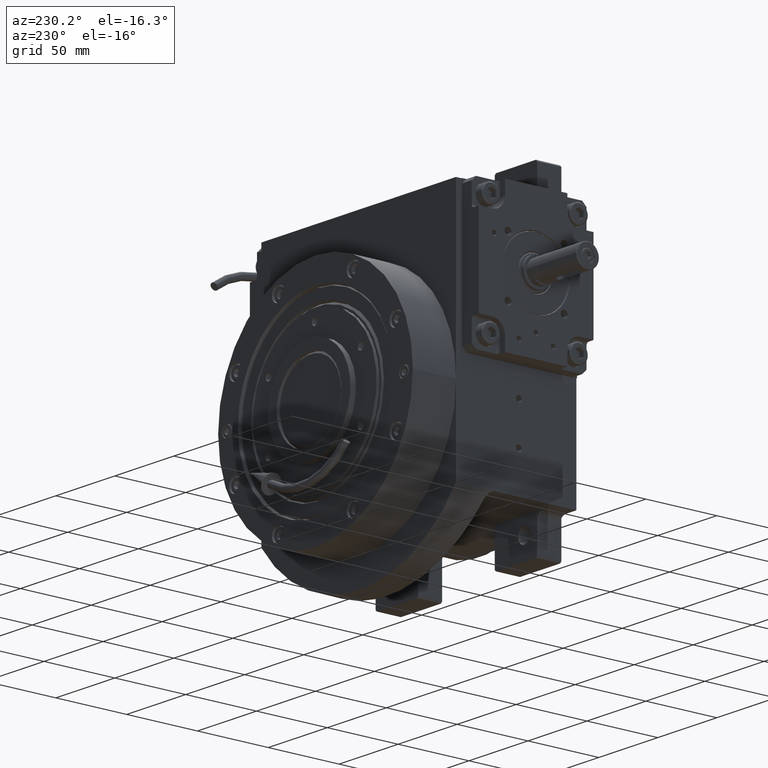
[diagram: clean part render]
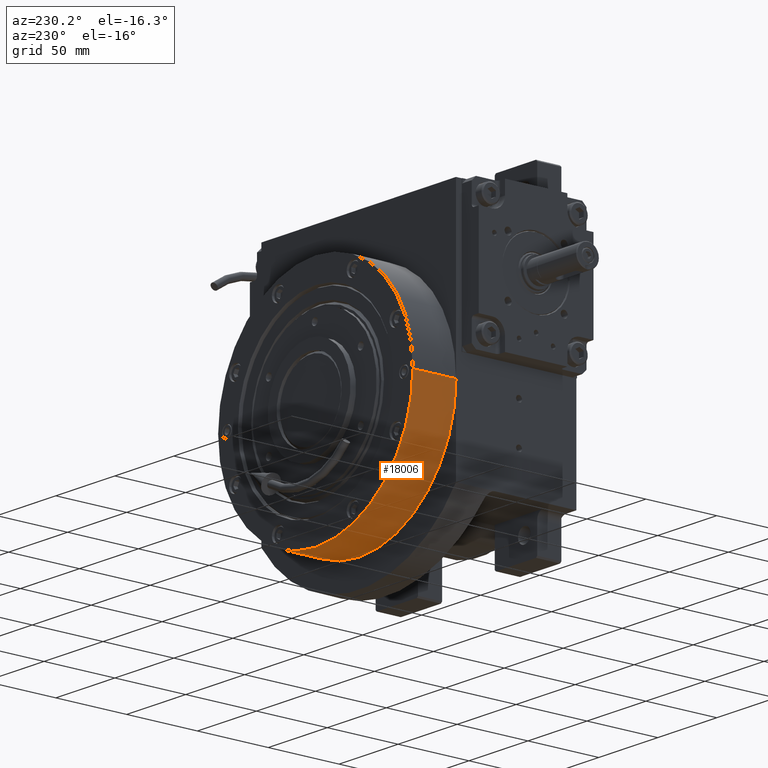
[diagram: same view with one face highlighted and labeled with its STEP entity id]
A machine part, auxiliary view. The second image highlights one B-rep face of the part: STEP entity #18006.
In plain terms, the highlighted cylindrical surface (partial cylindrical patch) has radius 82.5 mm, axis along (0, 1, 0).
Its self-contained STEP definition (entity closure, byte-faithful):
#1248 = CARTESIAN_POINT ( 'NONE',  ( 0.000000000000000000, 0.000000000000000000, 30.49999999999999289 ) ) ;
#1890 = DIRECTION ( 'NONE',  ( 1.000000000000000000, 0.000000000000000000, 0.000000000000000000 ) ) ;
#4792 = CARTESIAN_POINT ( 'NONE',  ( -82.50000000000001421, 1.010322486831990379E-14, 0.000000000000000000 ) ) ;
#6547 = FACE_OUTER_BOUND ( 'NONE', #38626, .T. ) ;
#7140 = CIRCLE ( 'NONE', #43274, 82.50000000000000000 ) ;
#9528 = EDGE_CURVE ( 'NONE', #32243, #24505, #55621, .T. ) ;
#12601 = CARTESIAN_POINT ( 'NONE',  ( 82.49999999999998579, -1.010300241903009221E-14, 30.49999999999999289 ) ) ;
#12663 = CARTESIAN_POINT ( 'NONE',  ( 0.000000000000000000, 0.000000000000000000, 0.000000000000000000 ) ) ;
#14517 = CARTESIAN_POINT ( 'NONE',  ( -82.50000000000001421, 2.020633851199993078E-14, 30.49999999999999289 ) ) ;
#16636 = VECTOR ( 'NONE', #58459, 1000.000000000000000 ) ;
#18006 = ADVANCED_FACE ( 'NONE', ( #6547 ), #36291, .T. ) ;
#18985 = LINE ( 'NONE', #4792, #16636 ) ;
#19119 = VECTOR ( 'NONE', #29786, 1000.000000000000000 ) ;
#24505 = VERTEX_POINT ( 'NONE', #12601 ) ;
#25429 = EDGE_CURVE ( 'NONE', #32243, #59865, #7140, .T. ) ;
#27399 = AXIS2_PLACEMENT_3D ( 'NONE', #12663, #51490, #32396 ) ;
#29786 = DIRECTION ( 'NONE',  ( 0.000000000000000000, 0.000000000000000000, 1.000000000000000000 ) ) ;
#31023 = DIRECTION ( 'NONE',  ( 0.000000000000000000, 0.000000000000000000, 1.000000000000000000 ) ) ;
#31121 = ORIENTED_EDGE ( 'NONE', *, *, #9528, .F. ) ;
#31360 = VERTEX_POINT ( 'NONE', #14517 ) ;
#31423 = EDGE_CURVE ( 'NONE', #24505, #31360, #43247, .T. ) ;
#32035 = CARTESIAN_POINT ( 'NONE',  ( -82.50000000000001421, 2.020633851199993078E-14, 0.000000000000000000 ) ) ;
#32243 = VERTEX_POINT ( 'NONE', #36614 ) ;
#32396 = DIRECTION ( 'NONE',  ( 1.000000000000000000, 0.000000000000000000, 0.000000000000000000 ) ) ;
#33366 = DIRECTION ( 'NONE',  ( 0.000000000000000000, 0.000000000000000000, 1.000000000000000000 ) ) ;
#36291 = CYLINDRICAL_SURFACE ( 'NONE', #27399, 82.50000000000000000 ) ;
#36614 = CARTESIAN_POINT ( 'NONE',  ( 82.49999999999998579, -1.010300241903009221E-14, 0.000000000000000000 ) ) ;
#38626 = EDGE_LOOP ( 'NONE', ( #47849, #39520, #31121, #61617 ) ) ;
#39462 = CARTESIAN_POINT ( 'NONE',  ( 82.49999999999998579, -1.010322486831990379E-14, 0.000000000000000000 ) ) ;
#39520 = ORIENTED_EDGE ( 'NONE', *, *, #31423, .F. ) ;
#40590 = EDGE_CURVE ( 'NONE', #59865, #31360, #18985, .T. ) ;
#43247 = CIRCLE ( 'NONE', #51518, 82.50000000000000000 ) ;
#43274 = AXIS2_PLACEMENT_3D ( 'NONE', #62784, #33366, #56660 ) ;
#47849 = ORIENTED_EDGE ( 'NONE', *, *, #40590, .T. ) ;
#51490 = DIRECTION ( 'NONE',  ( 0.000000000000000000, 0.000000000000000000, 1.000000000000000000 ) ) ;
#51518 = AXIS2_PLACEMENT_3D ( 'NONE', #1248, #31023, #1890 ) ;
#55621 = LINE ( 'NONE', #39462, #19119 ) ;
#56660 = DIRECTION ( 'NONE',  ( 1.000000000000000000, 0.000000000000000000, 0.000000000000000000 ) ) ;
#58459 = DIRECTION ( 'NONE',  ( 0.000000000000000000, 0.000000000000000000, 1.000000000000000000 ) ) ;
#59865 = VERTEX_POINT ( 'NONE', #32035 ) ;
#61617 = ORIENTED_EDGE ( 'NONE', *, *, #25429, .T. ) ;
#62784 = CARTESIAN_POINT ( 'NONE',  ( 0.000000000000000000, 0.000000000000000000, 0.000000000000000000 ) ) ;